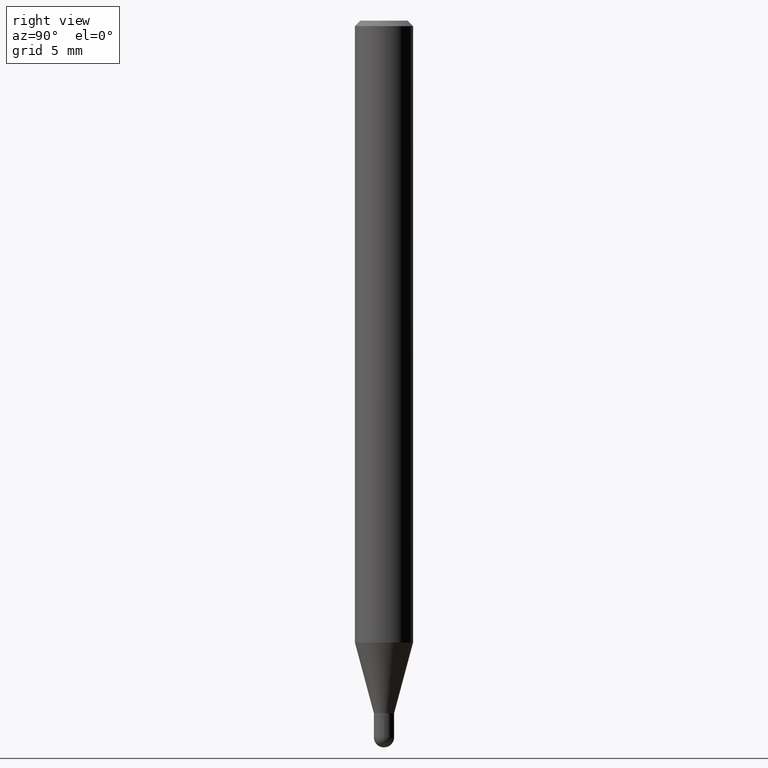
[diagram: clean part render]
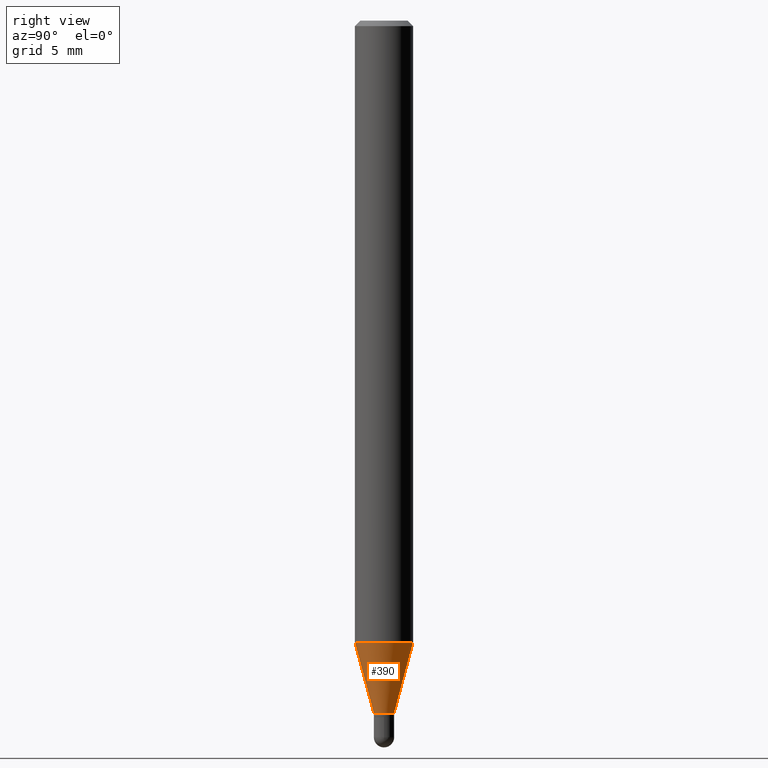
[diagram: same view with one face highlighted and labeled with its STEP entity id]
A machine part, right view. The second image highlights one B-rep face of the part: STEP entity #390.
In plain terms, the highlighted conical surface has half-angle 15 deg.
Its self-contained STEP definition (entity closure, byte-faithful):
#16 = CARTESIAN_POINT ( 'NONE',  ( 3.776534640565365081E-16, 0.02754999999999337840, -1.875499999999999945 ) ) ;
#21 = ORIENTED_EDGE ( 'NONE', *, *, #330, .F. ) ;
#24 = CARTESIAN_POINT ( 'NONE',  ( -1.923806217702102502E-16, -0.02755000000000647556, -1.875499999999999945 ) ) ;
#30 = CARTESIAN_POINT ( 'NONE',  ( 4.586391306147947121E-29, -6.548395605731713920E-15, -1.875499999999999945 ) ) ;
#36 = CIRCLE ( 'NONE', #46, 0.07875000000000000056 ) ;
#38 = CARTESIAN_POINT ( 'NONE',  ( 4.119117382740675669E-29, -5.881227389489135250E-15, -1.684418998652474020 ) ) ;
#46 = AXIS2_PLACEMENT_3D ( 'NONE', #38, #504, #114 ) ;
#69 = VERTEX_POINT ( 'NONE', #258 ) ;
#88 = ORIENTED_EDGE ( 'NONE', *, *, #462, .T. ) ;
#107 = FACE_OUTER_BOUND ( 'NONE', #293, .T. ) ;
#114 = DIRECTION ( 'NONE',  ( -6.982962677686264344E-15, -1.000000000000000000, 3.469013325287953293E-15 ) ) ;
#161 = AXIS2_PLACEMENT_3D ( 'NONE', #30, #192, #238 ) ;
#170 = VERTEX_POINT ( 'NONE', #300 ) ;
#174 = VERTEX_POINT ( 'NONE', #16 ) ;
#189 = LINE ( 'NONE', #24, #223 ) ;
#191 = DIRECTION ( 'NONE',  ( -1.807323732225331717E-15, -0.2588190451025184080, 0.9659258262890689783 ) ) ;
#192 = DIRECTION ( 'NONE',  ( -2.445423250412128530E-29, 3.491546577302966933E-15, 1.000000000000000000 ) ) ;
#193 = CARTESIAN_POINT ( 'NONE',  ( 5.595524044111199211E-16, 0.07874999999999410250, -1.684418998652474242 ) ) ;
#223 = VECTOR ( 'NONE', #191, 39.37007874015748854 ) ;
#238 = DIRECTION ( 'NONE',  ( -6.982962677686265922E-15, -1.000000000000000000, 0.000000000000000000 ) ) ;
#258 = CARTESIAN_POINT ( 'NONE',  ( -1.923806217702102502E-16, -0.02755000000000647556, -1.875499999999999945 ) ) ;
#259 = VERTEX_POINT ( 'NONE', #193 ) ;
#262 = CONICAL_SURFACE ( 'NONE', #386, 0.02754999999999992524, 0.2617993877991505181 ) ;
#264 = CARTESIAN_POINT ( 'NONE',  ( 4.586391306147947121E-29, -6.548395605731713920E-15, -1.875499999999999945 ) ) ;
#267 = DIRECTION ( 'NONE',  ( -6.982962677686265922E-15, -1.000000000000000000, 0.000000000000000000 ) ) ;
#293 = EDGE_LOOP ( 'NONE', ( #88, #425, #441, #21 ) ) ;
#296 = CIRCLE ( 'NONE', #161, 0.02754999999999992524 ) ;
#300 = CARTESIAN_POINT ( 'NONE',  ( -5.499083108677525221E-16, -0.07875000000000589861, -1.684418998652473798 ) ) ;
#330 = EDGE_CURVE ( 'NONE', #69, #170, #189, .T. ) ;
#356 = EDGE_CURVE ( 'NONE', #174, #259, #501, .T. ) ;
#386 = AXIS2_PLACEMENT_3D ( 'NONE', #264, #463, #267 ) ;
#387 = CARTESIAN_POINT ( 'NONE',  ( 1.957545237019528979E-16, 0.02754999999999337840, -1.875499999999999945 ) ) ;
#390 = ADVANCED_FACE ( 'NONE', ( #107 ), #262, .T. ) ;
#405 = EDGE_CURVE ( 'NONE', #170, #259, #36, .T. ) ;
#425 = ORIENTED_EDGE ( 'NONE', *, *, #356, .T. ) ;
#441 = ORIENTED_EDGE ( 'NONE', *, *, #405, .F. ) ;
#458 = VECTOR ( 'NONE', #502, 39.37007874015748854 ) ;
#462 = EDGE_CURVE ( 'NONE', #69, #174, #296, .T. ) ;
#463 = DIRECTION ( 'NONE',  ( -2.445423250412128530E-29, 3.491546577302966933E-15, 1.000000000000000000 ) ) ;
#501 = LINE ( 'NONE', #387, #458 ) ;
#502 = DIRECTION ( 'NONE',  ( 1.839019923739601893E-15, 0.2588190451025252359, 0.9659258262890670910 ) ) ;
#504 = DIRECTION ( 'NONE',  ( -2.445423250412128530E-29, 3.491546577302966933E-15, 1.000000000000000000 ) ) ;